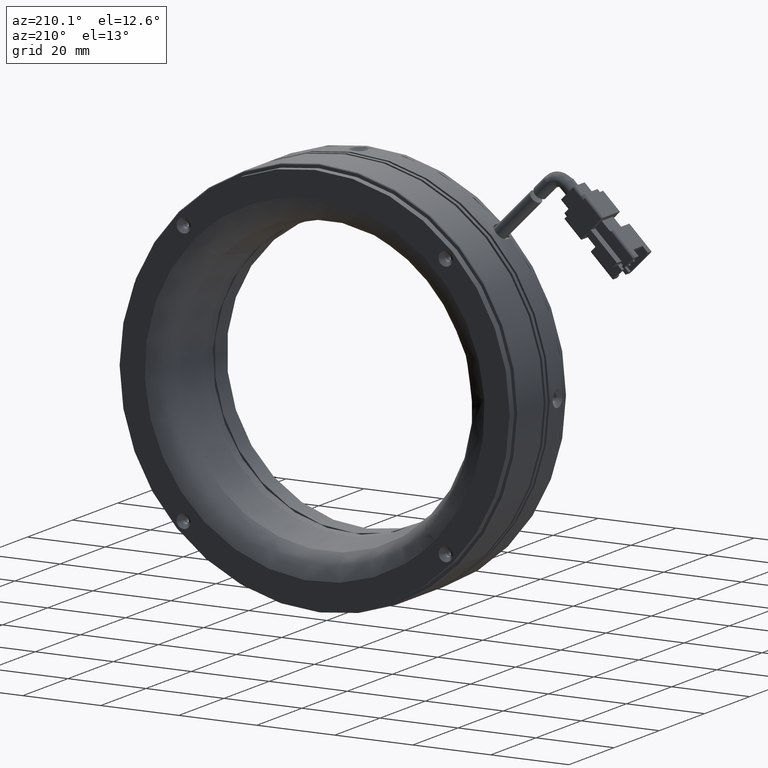
[diagram: clean part render]
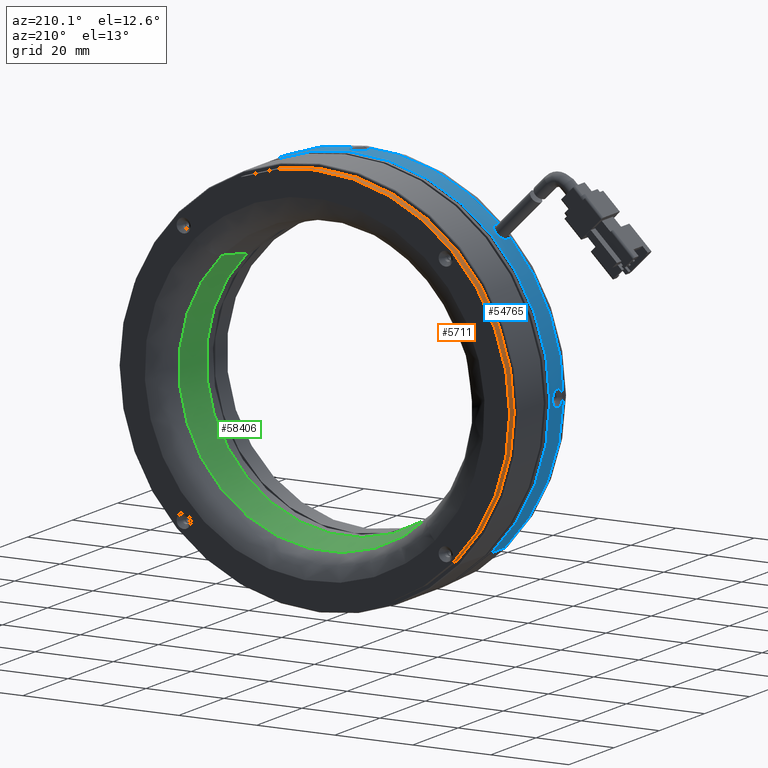
[diagram: same view with three faces highlighted in distinct colors, each labeled with its STEP entity id]
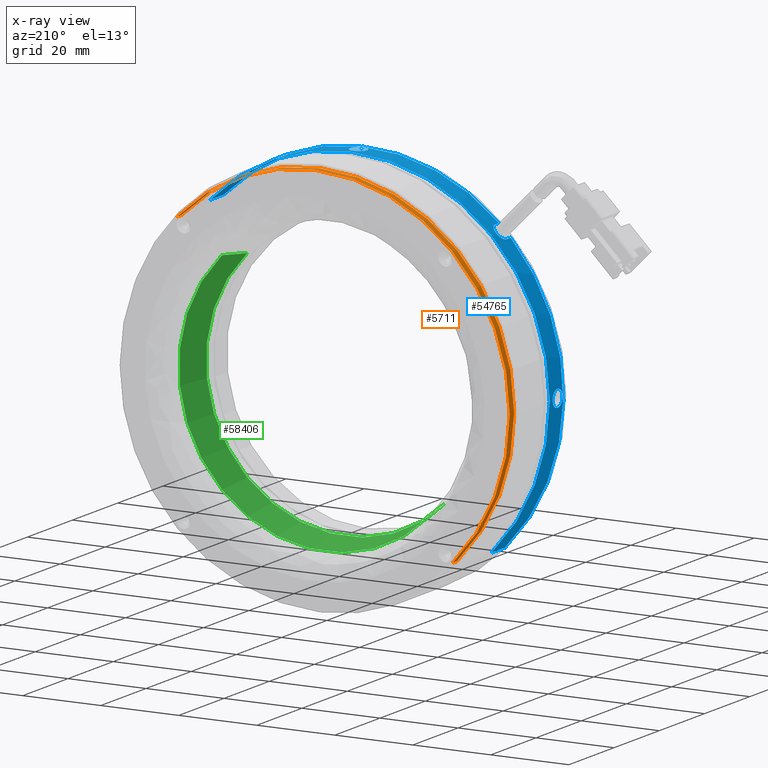
[diagram: x-ray of the same camera — body ghosted, the three highlighted faces saturated]
A machine part, auxiliary view with three faces highlighted in distinct colors.
The next image is the same camera in x-ray (body ghosted, the three faces saturated) — at least one of them is partly hidden behind the body in this view.
Their STEP definitions:

[orange] entity #5711 — the highlighted cylindrical surface (partial cylindrical patch) has radius 50 mm, axis along (0, -1, 0).
#5711 = ADVANCED_FACE ( 'NONE', ( #55793 ), #66071, .T. ) ;
#8781 = AXIS2_PLACEMENT_3D ( 'NONE', #23135, #73903, #30451 ) ;
#8796 = VERTEX_POINT ( 'NONE', #59562 ) ;
#9846 = LINE ( 'NONE', #43461, #29223 ) ;
#18230 = CARTESIAN_POINT ( 'NONE',  ( 35.35533905932776800, -0.1211342174009281700, 35.35533905932732100 ) ) ;
#21035 = EDGE_CURVE ( 'NONE', #8796, #26885, #74971, .T. ) ;
#22044 = CIRCLE ( 'NONE', #8781, 50.00000000000000700 ) ;
#23135 = CARTESIAN_POINT ( 'NONE',  ( 3.317158939778003900E-013, 23.40714717451851000, 2.765813746307613900E-015 ) ) ;
#25582 = DIRECTION ( 'NONE',  ( 5.593399160027876600E-020, -1.000000000000000000, 5.741257191681600800E-020 ) ) ;
#26595 = AXIS2_PLACEMENT_3D ( 'NONE', #39487, #90235, #46748 ) ;
#26885 = VERTEX_POINT ( 'NONE', #58699 ) ;
#29223 = VECTOR ( 'NONE', #86917, 1000.000000000000000 ) ;
#30451 = DIRECTION ( 'NONE',  ( -0.7071067811865485700, 0.0000000000000000000, -0.7071067811865464600 ) ) ;
#33646 = VERTEX_POINT ( 'NONE', #70688 ) ;
#36431 = DIRECTION ( 'NONE',  ( 5.593399160027876600E-020, -1.000000000000000000, 5.741257191681600800E-020 ) ) ;
#39487 = CARTESIAN_POINT ( 'NONE',  ( 3.317157821098172500E-013, 25.40714717451851700, 2.765698921163779800E-015 ) ) ;
#39935 = AXIS2_PLACEMENT_3D ( 'NONE', #79922, #36431, #65615 ) ;
#43461 = CARTESIAN_POINT ( 'NONE',  ( -35.35533905932710000, -0.1211342174009281700, -35.35533905932732800 ) ) ;
#46748 = DIRECTION ( 'NONE',  ( -0.7071067811865485700, 0.0000000000000000000, -0.7071067811865464600 ) ) ;
#47953 = ORIENTED_EDGE ( 'NONE', *, *, #21035, .F. ) ;
#53058 = ORIENTED_EDGE ( 'NONE', *, *, #64684, .T. ) ;
#55793 = FACE_OUTER_BOUND ( 'NONE', #78937, .T. ) ;
#57629 = CARTESIAN_POINT ( 'NONE',  ( -35.35533905932710000, 25.40714717451851700, -35.35533905932732800 ) ) ;
#58699 = CARTESIAN_POINT ( 'NONE',  ( 35.35533905932776800, 23.40714717451851000, 35.35533905932732100 ) ) ;
#59562 = CARTESIAN_POINT ( 'NONE',  ( 35.35533905932776800, 25.40714717451851700, 35.35533905932732100 ) ) ;
#64684 = EDGE_CURVE ( 'NONE', #74411, #33646, #9846, .T. ) ;
#65615 = DIRECTION ( 'NONE',  ( -0.7071067811865485700, 0.0000000000000000000, -0.7071067811865464600 ) ) ;
#66071 = CYLINDRICAL_SURFACE ( 'NONE', #39935, 50.00000000000000700 ) ;
#68105 = CIRCLE ( 'NONE', #26595, 50.00000000000000700 ) ;
#70188 = ORIENTED_EDGE ( 'NONE', *, *, #88150, .T. ) ;
#70688 = CARTESIAN_POINT ( 'NONE',  ( -35.35533905932710000, 23.40714717451851000, -35.35533905932732800 ) ) ;
#72283 = ORIENTED_EDGE ( 'NONE', *, *, #81922, .T. ) ;
#72673 = VECTOR ( 'NONE', #25582, 1000.000000000000000 ) ;
#73903 = DIRECTION ( 'NONE',  ( -5.593399160027876600E-020, 1.000000000000000000, -5.741257191681600800E-020 ) ) ;
#74411 = VERTEX_POINT ( 'NONE', #57629 ) ;
#74971 = LINE ( 'NONE', #18230, #72673 ) ;
#78937 = EDGE_LOOP ( 'NONE', ( #47953, #70188, #53058, #72283 ) ) ;
#79922 = CARTESIAN_POINT ( 'NONE',  ( 3.317172100084941600E-013, -0.1211342174009281700, 2.767164565455106200E-015 ) ) ;
#81922 = EDGE_CURVE ( 'NONE', #33646, #26885, #22044, .T. ) ;
#86917 = DIRECTION ( 'NONE',  ( 5.593399160027876600E-020, -1.000000000000000000, 5.741257191681600800E-020 ) ) ;
#88150 = EDGE_CURVE ( 'NONE', #8796, #74411, #68105, .T. ) ;
#90235 = DIRECTION ( 'NONE',  ( 5.593399160027876600E-020, -1.000000000000000000, 5.741257191681600800E-020 ) ) ;

[blue] entity #54765 — the highlighted cylindrical surface (partial cylindrical patch) has radius 51 mm, axis along (0, 1, -0).
#537 = CARTESIAN_POINT ( 'NONE',  ( 2.045849818407623500, 5.202980060670346200, 50.95897678261918900 ) ) ;
#563 = B_SPLINE_CURVE_WITH_KNOTS ( 'NONE', 3,
 ( #70752, #19932, #34573, #85357, #41882, #92652, #49140, #5631, #56410, #12894, #63760, #20268, #71060, #27570, #78409, #34879, #85656, #42215, #92964, #49467, #5924, #56731, #13205, #64060, #20568, #71367, #27872, #78712, #35184, #85987, #42518, #93272 ),
 .UNSPECIFIED., .F., .F.,
 ( 4, 2, 2, 2, 2, 2, 2, 2, 2, 2, 2, 2, 2, 2, 2, 4 ),
 ( 8.673617379884035500E-019, 0.0004123991418786278600, 0.0008247982837572548500, 0.001237197425635881800, 0.001649596567514508800, 0.002474394851271752300, 0.002886793993150387400, 0.003299193135029022400, 0.003711592276907657500, 0.004123991418786292600, 0.004536390560664928100, 0.004948789702543562700, 0.005361188844422198200, 0.005773587986300832800, 0.006185987128179468300, 0.006598386270058103000 ),
 .UNSPECIFIED. ) ;
#875 = CARTESIAN_POINT ( 'NONE',  ( -0.5627570195040198000, 3.778616108468898700, 50.99708475629208200 ) ) ;
#1720 = ORIENTED_EDGE ( 'NONE', *, *, #68073, .T. ) ;
#2355 = FACE_OUTER_BOUND ( 'NONE', #41432, .T. ) ;
#2450 = CARTESIAN_POINT ( 'NONE',  ( -50.99939401691414500, 8.092632754039309300, -0.2852268073739657200 ) ) ;
#2500 = EDGE_CURVE ( 'NONE', #23630, #76626, #15790, .T. ) ;
#2713 = CARTESIAN_POINT ( 'NONE',  ( -0.2852268073741584000, 8.092632754039318100, 50.99939401691445800 ) ) ;
#2778 = CARTESIAN_POINT ( 'NONE',  ( -50.96312275751640200, 6.874791889665109700, 1.939828432637236800 ) ) ;
#2842 = EDGE_CURVE ( 'NONE', #38419, #26897, #64919, .T. ) ;
#3036 = CARTESIAN_POINT ( 'NONE',  ( 1.939828432637060700, 6.874791889665116800, 50.96312275751677100 ) ) ;
#3797 = DIRECTION ( 'NONE',  ( -0.7071067811865460200, 0.0000000000000000000, -0.7071067811865489100 ) ) ;
#5631 = CARTESIAN_POINT ( 'NONE',  ( -37.23337093192834100, 6.391466863155682400, 34.85228960823304300 ) ) ;
#5924 = CARTESIAN_POINT ( 'NONE',  ( -35.30611530685608600, 6.931853745174002800, 36.80341581500449200 ) ) ;
#7793 = CARTESIAN_POINT ( 'NONE',  ( 2.154472316353780700, 5.907147174518511800, 50.95447231635381500 ) ) ;
#7883 = CARTESIAN_POINT ( 'NONE',  ( 1.874645505295360300, 4.813598729787256200, 50.96559355359597300 ) ) ;
#7896 = CARTESIAN_POINT ( 'NONE',  ( -36.06244584051352600, 9.407147174518513600, -36.06244584051400900 ) ) ;
#8183 = CARTESIAN_POINT ( 'NONE',  ( -0.9621037295040564300, 3.933365850457354100, 50.99109490434396000 ) ) ;
#9455 = CARTESIAN_POINT ( 'NONE',  ( -50.95505573655354000, 6.192683583496543200, -2.140800193111593000 ) ) ;
#9719 = CARTESIAN_POINT ( 'NONE',  ( -2.140800193111794600, 6.192683583496550300, 50.95505573655384500 ) ) ;
#9781 = CARTESIAN_POINT ( 'NONE',  ( -51.00000536473325500, 8.107276903583088100, 0.1403220791342184300 ) ) ;
#10020 = CARTESIAN_POINT ( 'NONE',  ( 0.1403220791340243100, 8.107276903583104000, 51.00000536473358900 ) ) ;
#10029 = VECTOR ( 'NONE', #59275, 1000.000000000000000 ) ;
#10076 = CARTESIAN_POINT ( 'NONE',  ( -50.95447231635346000, 6.194638880233033400, 2.154472316353968100 ) ) ;
#10314 = CARTESIAN_POINT ( 'NONE',  ( 2.154472316353790000, 6.194638880233034300, 50.95447231635380800 ) ) ;
#12894 = CARTESIAN_POINT ( 'NONE',  ( -36.97005174870853500, 6.789003239931703100, 35.13194757019896000 ) ) ;
#13205 = CARTESIAN_POINT ( 'NONE',  ( -35.06214074344095600, 6.694407356325314100, 37.03587650545053800 ) ) ;
#15154 = CARTESIAN_POINT ( 'NONE',  ( 1.629677659520185200, 4.461215960853009800, 50.97405111024246300 ) ) ;
#15455 = CARTESIAN_POINT ( 'NONE',  ( -1.320949418007203400, 4.163359933027760600, 50.98302411355310700 ) ) ;
#15790 = B_SPLINE_CURVE_WITH_KNOTS ( 'NONE', 3,
 ( #50874, #51195, #50557, #50252, #49941, #46411, #46081, #45769, #45473, #43294, #42983, #39111, #38514, #37581, #37267, #36931, #36624, #36309, #35978, #43904, #31510, #31210, #30907, #30586, #28038, #21362, #21038, #17163, #16842, #16506 ),
 .UNSPECIFIED., .F., .F.,
 ( 4, 2, 2, 2, 2, 2, 2, 2, 2, 2, 2, 2, 2, 2, 4 ),
 ( 0.0000000000000000000, 0.0004268718552336063200, 0.0008537437104672126400, 0.001280615565700819200, 0.001707487420934426100, 0.002561231131401641500, 0.002988102986635249900, 0.003414974841868858400, 0.003841846697102466800, 0.004268718552336075700, 0.004695590407569685000, 0.005122462262803294300, 0.005549334118036903600, 0.005976205973270512900, 0.006829949683737733200 ),
 .UNSPECIFIED. ) ;
#16506 = CARTESIAN_POINT ( 'NONE',  ( -50.95447231635347400, 5.907147174518511800, -2.154472316353609700 ) ) ;
#16771 = CARTESIAN_POINT ( 'NONE',  ( -50.95897678261883400, 6.611314288366670200, -2.045849818407453800 ) ) ;
#16842 = CARTESIAN_POINT ( 'NONE',  ( -50.95447231635349500, 5.619634756492362500, -2.154472316353594600 ) ) ;
#17042 = CARTESIAN_POINT ( 'NONE',  ( -2.045849818407660300, 6.611314288366677300, 50.95897678261916000 ) ) ;
#17105 = CARTESIAN_POINT ( 'NONE',  ( -50.99708475629175600, 8.035678240568119100, 0.5627570195041741200 ) ) ;
#17163 = CARTESIAN_POINT ( 'NONE',  ( -50.95690252090607000, 5.334815852978958400, -2.098892007227176400 ) ) ;
#17355 = CARTESIAN_POINT ( 'NONE',  ( 0.5627570195039832700, 8.035678240568129700, 50.99708475629208200 ) ) ;
#18552 = EDGE_CURVE ( 'NONE', #91502, #66073, #62610, .T. ) ;
#18665 = CARTESIAN_POINT ( 'NONE',  ( -34.53162554990458200, 3.407147174518513600, 37.53087844537022700 ) ) ;
#19426 = FACE_BOUND ( 'NONE', #25426, .T. ) ;
#19932 = CARTESIAN_POINT ( 'NONE',  ( -37.53087592586319900, 5.246591007321585600, 34.53162828824397900 ) ) ;
#20268 = CARTESIAN_POINT ( 'NONE',  ( -36.54117278572968500, 7.100464037205654200, 35.57750537797900100 ) ) ;
#20568 = CARTESIAN_POINT ( 'NONE',  ( -34.85317020714316500, 6.392949391268500000, 37.23254620221623400 ) ) ;
#21038 = CARTESIAN_POINT ( 'NONE',  ( -50.96312275751642300, 4.939502459371908600, -1.939828432636887500 ) ) ;
#21362 = CARTESIAN_POINT ( 'NONE',  ( -50.96564966620761100, 4.810927655535165200, -1.873114926607570600 ) ) ;
#21902 = B_SPLINE_CURVE_WITH_KNOTS ( 'NONE', 3,
 ( #89179, #38448, #9455, #60295, #16771, #67597, #24117, #74923, #31452, #82247, #38756, #89494, #46027, #2450, #53304, #9781, #60586, #17105, #67903, #24432, #75228, #31766, #82549, #39057, #89817, #46351, #2778, #53615, #10076, #60901 ),
 .UNSPECIFIED., .F., .F.,
 ( 4, 2, 2, 2, 2, 2, 2, 2, 2, 2, 2, 2, 2, 2, 4 ),
 ( 0.006829949683737733200, 0.007256806162831941700, 0.007683662641926149300, 0.008110519121020357000, 0.008537375600114565500, 0.009391088558302979100, 0.009817945037397185800, 0.01024480151649139300, 0.01067165799558559900, 0.01109851447467980600, 0.01152537095377401300, 0.01195222743286822000, 0.01237908391196242700, 0.01280594039105663300, 0.01365965334924504900 ),
 .UNSPECIFIED. ) ;
#21990 = ORIENTED_EDGE ( 'NONE', *, *, #18552, .T. ) ;
#22536 = CARTESIAN_POINT ( 'NONE',  ( 1.093377146963993700, 3.989773638397454000, 50.98894425759955600 ) ) ;
#22848 = CARTESIAN_POINT ( 'NONE',  ( -1.629917448090084000, 4.461387977884338200, 50.97404499597927700 ) ) ;
#23630 = VERTEX_POINT ( 'NONE', #40129 ) ;
#23999 = VECTOR ( 'NONE', #40980, 1000.000000000000000 ) ;
#24117 = CARTESIAN_POINT ( 'NONE',  ( -50.96559355359563200, 7.000695619249754900, -1.874645505295192000 ) ) ;
#24280 = ORIENTED_EDGE ( 'NONE', *, *, #55280, .T. ) ;
#24370 = CARTESIAN_POINT ( 'NONE',  ( -1.874645505295395400, 7.000695619249765600, 50.96559355359596600 ) ) ;
#24432 = CARTESIAN_POINT ( 'NONE',  ( -50.99109490434361900, 7.880928498579655700, 0.9621037295042120800 ) ) ;
#24695 = CARTESIAN_POINT ( 'NONE',  ( 0.9621037295040186800, 7.880928498579668200, 50.99109490434396000 ) ) ;
#25426 = EDGE_LOOP ( 'NONE', ( #51085, #57902 ) ) ;
#26897 = VERTEX_POINT ( 'NONE', #7896 ) ;
#27570 = CARTESIAN_POINT ( 'NONE',  ( -36.25702679229094400, 7.193841079724327500, 35.86706730587937400 ) ) ;
#27758 = ORIENTED_EDGE ( 'NONE', *, *, #87138, .T. ) ;
#27872 = CARTESIAN_POINT ( 'NONE',  ( -34.69115131553568400, 6.042809693648474800, 37.38351119486146200 ) ) ;
#28038 = CARTESIAN_POINT ( 'NONE',  ( -50.97110671548021100, 4.572367406420481100, -1.718221646358407000 ) ) ;
#28112 = ORIENTED_EDGE ( 'NONE', *, *, #2842, .T. ) ;
#29438 = LINE ( 'NONE', #67311, #46458 ) ;
#29539 = CARTESIAN_POINT ( 'NONE',  ( 2.154472316353790400, 5.763396143676658300, 50.95447231635382200 ) ) ;
#29693 = CYLINDRICAL_SURFACE ( 'NONE', #63389, 51.00000000000002100 ) ;
#29846 = CARTESIAN_POINT ( 'NONE',  ( 0.5648198454433830400, 3.779135031142791100, 50.99706386613184600 ) ) ;
#30175 = CARTESIAN_POINT ( 'NONE',  ( -1.873114926607776200, 4.810927655535160800, 50.96564966620792300 ) ) ;
#30586 = CARTESIAN_POINT ( 'NONE',  ( -50.97404499597892900, 4.461387977884347000, -1.629917448089868400 ) ) ;
#30907 = CARTESIAN_POINT ( 'NONE',  ( -50.98001507630345900, 4.256423796401235500, -1.431068467805253000 ) ) ;
#31210 = CARTESIAN_POINT ( 'NONE',  ( -50.98302411355279400, 4.163359933027770400, -1.320949418006999600 ) ) ;
#31452 = CARTESIAN_POINT ( 'NONE',  ( -50.97405111024214400, 7.353078388184002300, -1.629677659520020000 ) ) ;
#31510 = CARTESIAN_POINT ( 'NONE',  ( -50.98854209128187900, 4.002523069908266800, -1.087304250711859100 ) ) ;
#31707 = CARTESIAN_POINT ( 'NONE',  ( -1.629677659520223800, 7.353078388184014700, 50.97405111024244900 ) ) ;
#31766 = CARTESIAN_POINT ( 'NONE',  ( -50.98302411355278000, 7.650934416009255800, 1.320949418007354900 ) ) ;
#31844 = VERTEX_POINT ( 'NONE', #68629 ) ;
#32007 = CARTESIAN_POINT ( 'NONE',  ( 1.320949418007164400, 7.650934416009260300, 50.98302411355312800 ) ) ;
#34477 = CARTESIAN_POINT ( 'NONE',  ( -37.53087844537002800, 3.407147174518513600, 34.53162554990476000 ) ) ;
#34573 = CARTESIAN_POINT ( 'NONE',  ( -37.52147116228891800, 5.383669668471253700, 34.54185783311542900 ) ) ;
#34879 = CARTESIAN_POINT ( 'NONE',  ( -35.96588525894542700, 7.207220516283091300, 36.15901079134070500 ) ) ;
#35184 = CARTESIAN_POINT ( 'NONE',  ( -34.58246960620279300, 5.656283873193466100, 37.48404393727623300 ) ) ;
#35328 = ORIENTED_EDGE ( 'NONE', *, *, #55366, .T. ) ;
#35835 = EDGE_CURVE ( 'NONE', #76626, #23630, #21902, .T. ) ;
#35978 = CARTESIAN_POINT ( 'NONE',  ( -50.99538983723051200, 3.820840035068620000, -0.6982968416029327100 ) ) ;
#36309 = CARTESIAN_POINT ( 'NONE',  ( -50.99708475629175600, 3.778616108468914300, -0.5627570195038179600 ) ) ;
#36498 = DIRECTION ( 'NONE',  ( 1.679007573354061900E-019, 1.000000000000000000, -1.540743955509788700E-033 ) ) ;
#36624 = CARTESIAN_POINT ( 'NONE',  ( -50.99939580174995500, 3.721621272427866800, -0.2845645091288079900 ) ) ;
#36931 = CARTESIAN_POINT ( 'NONE',  ( -51.00000536473325500, 3.707017445453934200, -0.1403220791338621900 ) ) ;
#37163 = CARTESIAN_POINT ( 'NONE',  ( 0.1441949763676060600, 3.707278681579244700, 50.99999456174027300 ) ) ;
#37267 = CARTESIAN_POINT ( 'NONE',  ( -50.99999456173993900, 3.707278681579257100, 0.1441949763678030400 ) ) ;
#37486 = CARTESIAN_POINT ( 'NONE',  ( -2.098892007227384200, 5.334815852978957600, 50.95690252090636100 ) ) ;
#37581 = CARTESIAN_POINT ( 'NONE',  ( -50.99939401691411000, 3.721661594997721900, 0.2852268073743178300 ) ) ;
#38419 = VERTEX_POINT ( 'NONE', #76494 ) ;
#38448 = CARTESIAN_POINT ( 'NONE',  ( -50.95447231635348800, 6.050898205360152100, -2.154472316353636800 ) ) ;
#38514 = CARTESIAN_POINT ( 'NONE',  ( -50.99706386613148400, 3.779135031142805800, 0.5648198454435775500 ) ) ;
#38756 = CARTESIAN_POINT ( 'NONE',  ( -50.98894425759921500, 7.824520710639557600, -1.093377146963834900 ) ) ;
#38993 = CARTESIAN_POINT ( 'NONE',  ( -1.093377146964029900, 7.824520710639570900, 50.98894425759954900 ) ) ;
#39057 = CARTESIAN_POINT ( 'NONE',  ( -50.97404499597894300, 7.352906371152678300, 1.629917448090227200 ) ) ;
#39111 = CARTESIAN_POINT ( 'NONE',  ( -50.99532744252866200, 3.822444437182322700, 0.7025358010626369100 ) ) ;
#39134 = LINE ( 'NONE', #92179, #56096 ) ;
#39194 = ORIENTED_EDGE ( 'NONE', *, *, #70202, .T. ) ;
#39320 = CARTESIAN_POINT ( 'NONE',  ( 1.629917448090045600, 7.352906371152685400, 50.97404499597929800 ) ) ;
#39997 = CARTESIAN_POINT ( 'NONE',  ( -50.95447231635347400, 5.907147174518511800, -2.154472316353609700 ) ) ;
#40129 = CARTESIAN_POINT ( 'NONE',  ( -50.95447231635346000, 5.907147174518511800, 2.154472316353964500 ) ) ;
#40980 = DIRECTION ( 'NONE',  ( -1.679007573354061700E-019, -1.000000000000000000, 1.540743955509788700E-033 ) ) ;
#41432 = EDGE_LOOP ( 'NONE', ( #1720, #39194, #28112, #48091, #60233, #24280, #27758, #21990 ) ) ;
#41882 = CARTESIAN_POINT ( 'NONE',  ( -37.45663268005928600, 5.787261732061214300, 34.61218783221232800 ) ) ;
#42215 = CARTESIAN_POINT ( 'NONE',  ( -35.67370973250586300, 7.140682103991672100, 36.44728714302240700 ) ) ;
#42518 = CARTESIAN_POINT ( 'NONE',  ( -34.53162813347407200, 5.246595151220560600, 37.53087606826476000 ) ) ;
#42983 = CARTESIAN_POINT ( 'NONE',  ( -50.98894425759920800, 3.989773638397465600, 1.093377146964185800 ) ) ;
#43223 = VERTEX_POINT ( 'NONE', #60973 ) ;
#43294 = CARTESIAN_POINT ( 'NONE',  ( -50.98293755735385000, 4.156014005177784300, 1.333799639047205300 ) ) ;
#43904 = CARTESIAN_POINT ( 'NONE',  ( -50.99109490434363300, 3.933365850457365200, -0.9621037295038527000 ) ) ;
#44139 = CARTESIAN_POINT ( 'NONE',  ( 2.086788079380401700, 5.341873689354510000, 50.95729629890007600 ) ) ;
#44449 = CARTESIAN_POINT ( 'NONE',  ( -0.2845645091290088200, 3.721621272427849900, 50.99939580175028900 ) ) ;
#44502 = EDGE_CURVE ( 'NONE', #82853, #26897, #39134, .T. ) ;
#44739 = CARTESIAN_POINT ( 'NONE',  ( -2.154472316353818900, 5.907147174518511800, 50.95447231635378700 ) ) ;
#45473 = CARTESIAN_POINT ( 'NONE',  ( -50.97405111024212200, 4.461215960853018600, 1.629677659520375500 ) ) ;
#45769 = CARTESIAN_POINT ( 'NONE',  ( -50.97106247840303400, 4.574087178237203200, 1.719538270457479100 ) ) ;
#45966 = CARTESIAN_POINT ( 'NONE',  ( -2.154472316353818900, 5.907147174518511800, 50.95447231635378700 ) ) ;
#46027 = CARTESIAN_POINT ( 'NONE',  ( -50.99706386613150500, 8.035159317894223100, -0.5648198454432219500 ) ) ;
#46081 = CARTESIAN_POINT ( 'NONE',  ( -50.96559355359563200, 4.813598729787264200, 1.874645505295543700 ) ) ;
#46285 = CARTESIAN_POINT ( 'NONE',  ( -0.5648198454434187900, 8.035159317894235500, 50.99706386613182500 ) ) ;
#46351 = CARTESIAN_POINT ( 'NONE',  ( -50.96564966620760400, 7.003366693501859300, 1.873114926607924600 ) ) ;
#46411 = CARTESIAN_POINT ( 'NONE',  ( -50.96312404013247700, 4.939431623449069200, 1.939794906951443100 ) ) ;
#46458 = VECTOR ( 'NONE', #52695, 1000.000000000000000 ) ;
#46596 = CARTESIAN_POINT ( 'NONE',  ( 1.873114926607741100, 7.003366693501862800, 50.96564966620795200 ) ) ;
#47357 = DIRECTION ( 'NONE',  ( 1.679007573354061900E-019, 1.000000000000000000, -1.540743955509788700E-033 ) ) ;
#48091 = ORIENTED_EDGE ( 'NONE', *, *, #44502, .F. ) ;
#49140 = CARTESIAN_POINT ( 'NONE',  ( -37.33908403287005500, 6.162935859950517100, 34.73900985170682500 ) ) ;
#49467 = CARTESIAN_POINT ( 'NONE',  ( -35.39545876799370200, 6.997095089121972800, 36.71754220106066000 ) ) ;
#49941 = CARTESIAN_POINT ( 'NONE',  ( -50.95897678261882600, 5.202980060670353300, 2.045849818407807800 ) ) ;
#50252 = CARTESIAN_POINT ( 'NONE',  ( -50.95729629889970600, 5.341873689354514500, 2.086788079380586000 ) ) ;
#50557 = CARTESIAN_POINT ( 'NONE',  ( -50.95505573655353300, 5.621610765540478600, 2.140800193111941100 ) ) ;
#50874 = CARTESIAN_POINT ( 'NONE',  ( -50.95447231635346000, 5.907147174518511800, 2.154472316353964500 ) ) ;
#51085 = ORIENTED_EDGE ( 'NONE', *, *, #35835, .T. ) ;
#51195 = CARTESIAN_POINT ( 'NONE',  ( -50.95447231635344600, 5.763396143676659200, 2.154472316353968100 ) ) ;
#51412 = CARTESIAN_POINT ( 'NONE',  ( 1.939794906951258600, 4.939431623449062900, 50.96312404013281800 ) ) ;
#51607 = VERTEX_POINT ( 'NONE', #81541 ) ;
#51731 = CARTESIAN_POINT ( 'NONE',  ( -0.6982968416031345400, 3.820840035068606300, 50.99538983723083900 ) ) ;
#52027 = CARTESIAN_POINT ( 'NONE',  ( -37.53087844537003500, 3.407147174518513600, 34.53162554990476700 ) ) ;
#52140 = CARTESIAN_POINT ( 'NONE',  ( 3.317125359626537400E-013, 3.407147174518513600, 2.765813746307307400E-015 ) ) ;
#52430 = DIRECTION ( 'NONE',  ( 1.679007573354061900E-019, 1.000000000000000000, -1.540743955509788700E-033 ) ) ;
#52695 = DIRECTION ( 'NONE',  ( 1.679007573354061700E-019, 1.000000000000000000, -1.540743955509788700E-033 ) ) ;
#52730 = DIRECTION ( 'NONE',  ( -0.7071067811865460200, 0.0000000000000000000, -0.7071067811865489100 ) ) ;
#53304 = CARTESIAN_POINT ( 'NONE',  ( -50.99999456173993200, 8.107015667457767800, -0.1441949763674492100 ) ) ;
#53566 = CARTESIAN_POINT ( 'NONE',  ( -0.1441949763676424500, 8.107015667457782000, 50.99999456174028000 ) ) ;
#53615 = CARTESIAN_POINT ( 'NONE',  ( -50.95690252090603400, 6.479478496058064300, 2.098892007227524600 ) ) ;
#53700 = CIRCLE ( 'NONE', #66016, 51.00000000000002100 ) ;
#53857 = CARTESIAN_POINT ( 'NONE',  ( 2.098892007227348300, 6.479478496058066000, 50.95690252090638900 ) ) ;
#54765 = ADVANCED_FACE ( 'NONE', ( #58046, #19426, #2355 ), #29693, .T. ) ;
#55280 = EDGE_CURVE ( 'NONE', #80559, #51607, #77150, .T. ) ;
#55366 = EDGE_CURVE ( 'NONE', #43223, #89090, #66155, .T. ) ;
#56096 = VECTOR ( 'NONE', #62953, 1000.000000000000000 ) ;
#56410 = CARTESIAN_POINT ( 'NONE',  ( -37.17188672828908800, 6.499303982039245800, 34.91791021314957500 ) ) ;
#56567 = EDGE_LOOP ( 'NONE', ( #35328, #89051 ) ) ;
#56731 = CARTESIAN_POINT ( 'NONE',  ( -35.13997822031160500, 6.780767138334643300, 36.96207684085359100 ) ) ;
#57902 = ORIENTED_EDGE ( 'NONE', *, *, #2500, .T. ) ;
#58046 = FACE_BOUND ( 'NONE', #56567, .T. ) ;
#58687 = CARTESIAN_POINT ( 'NONE',  ( 1.719538270457295200, 4.574087178237194400, 50.97106247840338300 ) ) ;
#58992 = CARTESIAN_POINT ( 'NONE',  ( -1.087304250712061600, 4.002523069908257000, 50.98854209128219100 ) ) ;
#59055 = EDGE_CURVE ( 'NONE', #82853, #80559, #53700, .T. ) ;
#59275 = DIRECTION ( 'NONE',  ( 1.679007573354061700E-019, 1.000000000000000000, -1.540743955509788700E-033 ) ) ;
#60233 = ORIENTED_EDGE ( 'NONE', *, *, #59055, .T. ) ;
#60295 = CARTESIAN_POINT ( 'NONE',  ( -50.95729629889974200, 6.472420659682509100, -2.086788079380238200 ) ) ;
#60530 = CARTESIAN_POINT ( 'NONE',  ( -2.086788079380439400, 6.472420659682511800, 50.95729629890003300 ) ) ;
#60586 = CARTESIAN_POINT ( 'NONE',  ( -50.99939580174994800, 8.092673076609164800, 0.2845645091291655900 ) ) ;
#60847 = CARTESIAN_POINT ( 'NONE',  ( 0.2845645091289720800, 8.092673076609177200, 50.99939580175028900 ) ) ;
#60901 = CARTESIAN_POINT ( 'NONE',  ( -50.95447231635346000, 5.907147174518511800, 2.154472316353964500 ) ) ;
#60973 = CARTESIAN_POINT ( 'NONE',  ( -2.154472316353818900, 5.907147174518511800, 50.95447231635378700 ) ) ;
#61160 = CARTESIAN_POINT ( 'NONE',  ( 2.154472316353780700, 5.907147174518511800, 50.95447231635381500 ) ) ;
#62610 = LINE ( 'NONE', #69812, #23999 ) ;
#62922 = AXIS2_PLACEMENT_3D ( 'NONE', #79979, #36498, #87229 ) ;
#62953 = DIRECTION ( 'NONE',  ( 1.679007573354061700E-019, 1.000000000000000000, -1.540743955509788700E-033 ) ) ;
#63389 = AXIS2_PLACEMENT_3D ( 'NONE', #52140, #52430, #52730 ) ;
#63760 = CARTESIAN_POINT ( 'NONE',  ( -36.80683696036565100, 6.944543419303400400, 35.30327949185232200 ) ) ;
#64060 = CARTESIAN_POINT ( 'NONE',  ( -34.91764201151909900, 6.499052370487560500, 37.17214196673686600 ) ) ;
#64919 = CIRCLE ( 'NONE', #72261, 51.00000000000002100 ) ;
#66016 = AXIS2_PLACEMENT_3D ( 'NONE', #90831, #47357, #3797 ) ;
#66022 = CARTESIAN_POINT ( 'NONE',  ( 1.333799639047015000, 4.156014005177774500, 50.98293755735418400 ) ) ;
#66073 = VERTEX_POINT ( 'NONE', #18665 ) ;
#66155 = B_SPLINE_CURVE_WITH_KNOTS ( 'NONE', 3,
 ( #45966, #89436, #9719, #60530, #17042, #67854, #24370, #75175, #31707, #82497, #38993, #89753, #46285, #2713, #53566, #10020, #60847, #17355, #68154, #24695, #75497, #32007, #82809, #39320, #90068, #46596, #3036, #53857, #10314, #61160 ),
 .UNSPECIFIED., .F., .F.,
 ( 4, 2, 2, 2, 2, 2, 2, 2, 2, 2, 2, 2, 2, 2, 4 ),
 ( 0.006829949683737781800, 0.007256806162831992000, 0.007683662641926201400, 0.008110519121020412500, 0.008537375600114622800, 0.009391088558303043200, 0.009817945037397253500, 0.01024480151649146200, 0.01067165799558567200, 0.01109851447467988300, 0.01152537095377409300, 0.01195222743286830300, 0.01237908391196251200, 0.01280594039105672200, 0.01365965334924514100 ),
 .UNSPECIFIED. ) ;
#66328 = CARTESIAN_POINT ( 'NONE',  ( -1.431068467805466800, 4.256423796401222100, 50.98001507630378600 ) ) ;
#67311 = CARTESIAN_POINT ( 'NONE',  ( 36.06244584051418700, 3.407147174518513600, 36.06244584051400900 ) ) ;
#67597 = CARTESIAN_POINT ( 'NONE',  ( -50.96312404013248500, 6.874862725587950900, -1.939794906951089800 ) ) ;
#67854 = CARTESIAN_POINT ( 'NONE',  ( -1.939794906951295000, 6.874862725587961500, 50.96312404013279000 ) ) ;
#67903 = CARTESIAN_POINT ( 'NONE',  ( -50.99538983723050500, 7.993454313968405800, 0.6982968416032885300 ) ) ;
#68073 = EDGE_CURVE ( 'NONE', #66073, #31844, #94044, .T. ) ;
#68154 = CARTESIAN_POINT ( 'NONE',  ( 0.6982968416030975700, 7.993454313968416400, 50.99538983723084600 ) ) ;
#68629 = CARTESIAN_POINT ( 'NONE',  ( 36.06244584051417900, 3.407147174518513600, 36.06244584051400200 ) ) ;
#69812 = CARTESIAN_POINT ( 'NONE',  ( -34.53162554990458900, 3.407147174518513600, 37.53087844537022000 ) ) ;
#70202 = EDGE_CURVE ( 'NONE', #31844, #38419, #29438, .T. ) ;
#70752 = CARTESIAN_POINT ( 'NONE',  ( -37.53087844537002800, 5.107147174518530600, 34.53162554990476000 ) ) ;
#71060 = CARTESIAN_POINT ( 'NONE',  ( -36.44786735380696300, 7.140521417426939800, 35.67311977246562500 ) ) ;
#71367 = CARTESIAN_POINT ( 'NONE',  ( -34.74019294081554700, 6.165611072107579600, 37.33798286762648600 ) ) ;
#72261 = AXIS2_PLACEMENT_3D ( 'NONE', #92616, #91680, #86254 ) ;
#72680 = CARTESIAN_POINT ( 'NONE',  ( 2.154472316353780700, 5.907147174518511800, 50.95447231635381500 ) ) ;
#73324 = CARTESIAN_POINT ( 'NONE',  ( 0.7025358010624432900, 3.822444437182311600, 50.99532744252899600 ) ) ;
#73650 = CARTESIAN_POINT ( 'NONE',  ( -1.718221646358612000, 4.572367406420476700, 50.97110671548054500 ) ) ;
#73938 = EDGE_CURVE ( 'NONE', #89090, #43223, #81628, .T. ) ;
#74923 = CARTESIAN_POINT ( 'NONE',  ( -50.97106247840306300, 7.240207170799823900, -1.719538270457126300 ) ) ;
#75175 = CARTESIAN_POINT ( 'NONE',  ( -1.719538270457329000, 7.240207170799829200, 50.97106247840335400 ) ) ;
#75228 = CARTESIAN_POINT ( 'NONE',  ( -50.98854209128185700, 7.811771279128759500, 1.087304250712215000 ) ) ;
#75497 = CARTESIAN_POINT ( 'NONE',  ( 1.087304250712022700, 7.811771279128765700, 50.98854209128219800 ) ) ;
#76494 = CARTESIAN_POINT ( 'NONE',  ( 36.06244584051417900, 9.407147174518513600, 36.06244584051400200 ) ) ;
#76626 = VERTEX_POINT ( 'NONE', #39997 ) ;
#77150 = LINE ( 'NONE', #52027, #10029 ) ;
#78409 = CARTESIAN_POINT ( 'NONE',  ( -36.16063131850666700, 7.207073179819971600, 35.96425595664332100 ) ) ;
#78712 = CARTESIAN_POINT ( 'NONE',  ( -34.61227861165625800, 5.787630073783791600, 37.45654893557077300 ) ) ;
#79979 = CARTESIAN_POINT ( 'NONE',  ( 3.317125359626537400E-013, 3.407147174518513600, 2.765813746307307400E-015 ) ) ;
#80559 = VERTEX_POINT ( 'NONE', #34477 ) ;
#80661 = CARTESIAN_POINT ( 'NONE',  ( 0.2852268073741222000, 3.721661594997708500, 50.99939401691446500 ) ) ;
#80949 = CARTESIAN_POINT ( 'NONE',  ( -1.939828432637096300, 4.939502459371905000, 50.96312275751674300 ) ) ;
#81541 = CARTESIAN_POINT ( 'NONE',  ( -37.53087844537002800, 5.107147174518530600, 34.53162554990476000 ) ) ;
#81628 = B_SPLINE_CURVE_WITH_KNOTS ( 'NONE', 3,
 ( #72680, #29539, #87576, #44139, #537, #51412, #7883, #58687, #15154, #66022, #22536, #73324, #29846, #80661, #37163, #87918, #44449, #875, #51731, #8183, #58992, #15455, #66328, #22848, #73650, #30175, #80949, #37486, #88232, #44739 ),
 .UNSPECIFIED., .F., .F.,
 ( 4, 2, 2, 2, 2, 2, 2, 2, 2, 2, 2, 2, 2, 2, 4 ),
 ( 1.734723475976807100E-018, 0.0004268718552336128800, 0.0008537437104672240200, 0.001280615565700835100, 0.001707487420934446300, 0.002561231131401668400, 0.002988102986635279400, 0.003414974841868890400, 0.003841846697102502300, 0.004268718552336113800, 0.004695590407569725700, 0.005122462262803336800, 0.005549334118036948700, 0.005976205973270560600, 0.006829949683737781800 ),
 .UNSPECIFIED. ) ;
#82247 = CARTESIAN_POINT ( 'NONE',  ( -50.98293755735385700, 7.658280343859237500, -1.333799639046850900 ) ) ;
#82497 = CARTESIAN_POINT ( 'NONE',  ( -1.333799639047053000, 7.658280343859249100, 50.98293755735416300 ) ) ;
#82549 = CARTESIAN_POINT ( 'NONE',  ( -50.98001507630345200, 7.557870552635789900, 1.431068467805613600 ) ) ;
#82809 = CARTESIAN_POINT ( 'NONE',  ( 1.431068467805430000, 7.557870552635803200, 50.98001507630379300 ) ) ;
#82853 = VERTEX_POINT ( 'NONE', #84215 ) ;
#84215 = CARTESIAN_POINT ( 'NONE',  ( -36.06244584051351900, 3.407147174518513600, -36.06244584051400200 ) ) ;
#85357 = CARTESIAN_POINT ( 'NONE',  ( -37.48458260829871600, 5.653291144411612700, 34.58188553892435400 ) ) ;
#85656 = CARTESIAN_POINT ( 'NONE',  ( -35.86659163685442300, 7.193712037838014200, 36.25749454278570000 ) ) ;
#85987 = CARTESIAN_POINT ( 'NONE',  ( -34.54208696771148400, 5.386135705328336500, 37.52126039821489200 ) ) ;
#86254 = DIRECTION ( 'NONE',  ( -0.7071067811865460200, 0.0000000000000000000, -0.7071067811865489100 ) ) ;
#87138 = EDGE_CURVE ( 'NONE', #51607, #91502, #563, .T. ) ;
#87229 = DIRECTION ( 'NONE',  ( -0.7071067811865460200, 0.0000000000000000000, -0.7071067811865489100 ) ) ;
#87576 = CARTESIAN_POINT ( 'NONE',  ( 2.140800193111756400, 5.621610765540475900, 50.95505573655387400 ) ) ;
#87918 = CARTESIAN_POINT ( 'NONE',  ( -0.1403220791340602200, 3.707017445453922200, 51.00000536473358900 ) ) ;
#88232 = CARTESIAN_POINT ( 'NONE',  ( -2.154472316353816600, 5.619634756492578400, 50.95447231635380100 ) ) ;
#89051 = ORIENTED_EDGE ( 'NONE', *, *, #73938, .T. ) ;
#89090 = VERTEX_POINT ( 'NONE', #7793 ) ;
#89179 = CARTESIAN_POINT ( 'NONE',  ( -50.95447231635347400, 5.907147174518511800, -2.154472316353609700 ) ) ;
#89436 = CARTESIAN_POINT ( 'NONE',  ( -2.154472316353817100, 6.050898205360366200, 50.95447231635378700 ) ) ;
#89494 = CARTESIAN_POINT ( 'NONE',  ( -50.99532744252866200, 7.991849911854704800, -0.7025358010622850800 ) ) ;
#89753 = CARTESIAN_POINT ( 'NONE',  ( -0.7025358010624794800, 7.991849911854708400, 50.99532744252897500 ) ) ;
#89817 = CARTESIAN_POINT ( 'NONE',  ( -50.97110671548021100, 7.241926942616542500, 1.718221646358761000 ) ) ;
#90068 = CARTESIAN_POINT ( 'NONE',  ( 1.718221646358578000, 7.241926942616549600, 50.97110671548056600 ) ) ;
#90831 = CARTESIAN_POINT ( 'NONE',  ( 3.317125359626537400E-013, 3.407147174518513600, 2.765813746307307400E-015 ) ) ;
#91502 = VERTEX_POINT ( 'NONE', #93698 ) ;
#91680 = DIRECTION ( 'NONE',  ( -1.679007573354061900E-019, -1.000000000000000000, 1.540743955509788700E-033 ) ) ;
#92179 = CARTESIAN_POINT ( 'NONE',  ( -36.06244584051352600, 3.407147174518513600, -36.06244584051400900 ) ) ;
#92616 = CARTESIAN_POINT ( 'NONE',  ( 3.317135433671977200E-013, 9.407147174518513600, 2.765813746307307400E-015 ) ) ;
#92652 = CARTESIAN_POINT ( 'NONE',  ( -37.38372930381440500, 6.042121852189962000, 34.69091612512360000 ) ) ;
#92964 = CARTESIAN_POINT ( 'NONE',  ( -35.57944627434759600, 7.101425555535205300, 36.53928583722218800 ) ) ;
#93272 = CARTESIAN_POINT ( 'NONE',  ( -34.53162554990458900, 5.107147174518530600, 37.53087844537022000 ) ) ;
#93698 = CARTESIAN_POINT ( 'NONE',  ( -34.53162554990458900, 5.107147174518530600, 37.53087844537022000 ) ) ;
#94044 = CIRCLE ( 'NONE', #62922, 51.00000000000002100 ) ;

[green] entity #58406 — the highlighted conical surface has half-angle 10 deg.
#852 = DIRECTION ( 'NONE',  ( -0.1227878039689699100, 0.9848077530122089100, -0.1227878039689695900 ) ) ;
#2097 = LINE ( 'NONE', #37138, #57791 ) ;
#4422 = ORIENTED_EDGE ( 'NONE', *, *, #46131, .T. ) ;
#10042 = CIRCLE ( 'NONE', #90926, 37.68601622387225100 ) ;
#11120 = LINE ( 'NONE', #75935, #49844 ) ;
#15869 = VERTEX_POINT ( 'NONE', #79760 ) ;
#18954 = CARTESIAN_POINT ( 'NONE',  ( -25.49881428618152400, 11.23180113905660900, -25.49881428618178300 ) ) ;
#22705 = VERTEX_POINT ( 'NONE', #62690 ) ;
#29653 = ORIENTED_EDGE ( 'NONE', *, *, #43208, .F. ) ;
#32455 = DIRECTION ( 'NONE',  ( -5.593399160027876600E-020, 1.000000000000000000, -5.741257191681600800E-020 ) ) ;
#34310 = AXIS2_PLACEMENT_3D ( 'NONE', #82765, #46546, #75756 ) ;
#34559 = CARTESIAN_POINT ( 'NONE',  ( 3.317160594367525600E-013, 20.44903624052007300, 2.765983579064349600E-015 ) ) ;
#37138 = CARTESIAN_POINT ( 'NONE',  ( -26.64803762780602300, 20.44903624052007600, -26.64803762780628200 ) ) ;
#38516 = EDGE_CURVE ( 'NONE', #15869, #22705, #10042, .T. ) ;
#41866 = DIRECTION ( 'NONE',  ( -0.7071067811865485700, 0.0000000000000000000, -0.7071067811865465700 ) ) ;
#43208 = EDGE_CURVE ( 'NONE', #59625, #73502, #46399, .T. ) ;
#46131 = EDGE_CURVE ( 'NONE', #59625, #22705, #11120, .T. ) ;
#46399 = CIRCLE ( 'NONE', #69773, 36.06076898795116400 ) ;
#46546 = DIRECTION ( 'NONE',  ( -5.593399160027876600E-020, 1.000000000000000000, -5.741257191681600800E-020 ) ) ;
#48378 = ORIENTED_EDGE ( 'NONE', *, *, #38516, .F. ) ;
#49844 = VECTOR ( 'NONE', #83229, 999.9999999999998900 ) ;
#55262 = EDGE_CURVE ( 'NONE', #73502, #15869, #2097, .T. ) ;
#57791 = VECTOR ( 'NONE', #852, 999.9999999999998900 ) ;
#58406 = ADVANCED_FACE ( 'NONE', ( #65512 ), #75737, .F. ) ;
#59625 = VERTEX_POINT ( 'NONE', #91722 ) ;
#62690 = CARTESIAN_POINT ( 'NONE',  ( 26.64803762780669100, 20.44903624052007300, 26.64803762780628200 ) ) ;
#65512 = FACE_OUTER_BOUND ( 'NONE', #75996, .T. ) ;
#69773 = AXIS2_PLACEMENT_3D ( 'NONE', #75939, #32455, #83236 ) ;
#69943 = ORIENTED_EDGE ( 'NONE', *, *, #55262, .F. ) ;
#73502 = VERTEX_POINT ( 'NONE', #18954 ) ;
#75737 = CONICAL_SURFACE ( 'NONE', #34310, 37.68601622387225100, 0.1745329251994285300 ) ;
#75756 = DIRECTION ( 'NONE',  ( 0.7071067811865485700, 0.0000000000000000000, 0.7071067811865465700 ) ) ;
#75935 = CARTESIAN_POINT ( 'NONE',  ( 26.64803762780669100, 20.44903624052007600, 26.64803762780628200 ) ) ;
#75939 = CARTESIAN_POINT ( 'NONE',  ( 3.317165749935032900E-013, 11.23180113905660900, 2.766512764237486600E-015 ) ) ;
#75996 = EDGE_LOOP ( 'NONE', ( #69943, #29653, #4422, #48378 ) ) ;
#79760 = CARTESIAN_POINT ( 'NONE',  ( -26.64803762780602300, 20.44903624052007300, -26.64803762780628200 ) ) ;
#82765 = CARTESIAN_POINT ( 'NONE',  ( 3.317160594367525600E-013, 20.44903624052007600, 2.765983579064349600E-015 ) ) ;
#83229 = DIRECTION ( 'NONE',  ( 0.1227878039689699300, 0.9848077530122089100, 0.1227878039689695600 ) ) ;
#83236 = DIRECTION ( 'NONE',  ( 0.7071067811865485700, 1.443166791498336800E-016, 0.7071067811865464600 ) ) ;
#85340 = DIRECTION ( 'NONE',  ( 5.593399160027876600E-020, -1.000000000000000000, 5.741257191681600800E-020 ) ) ;
#90926 = AXIS2_PLACEMENT_3D ( 'NONE', #34559, #85340, #41866 ) ;
#91722 = CARTESIAN_POINT ( 'NONE',  ( 25.49881428618219600, 11.23180113905660900, 25.49881428618178700 ) ) ;